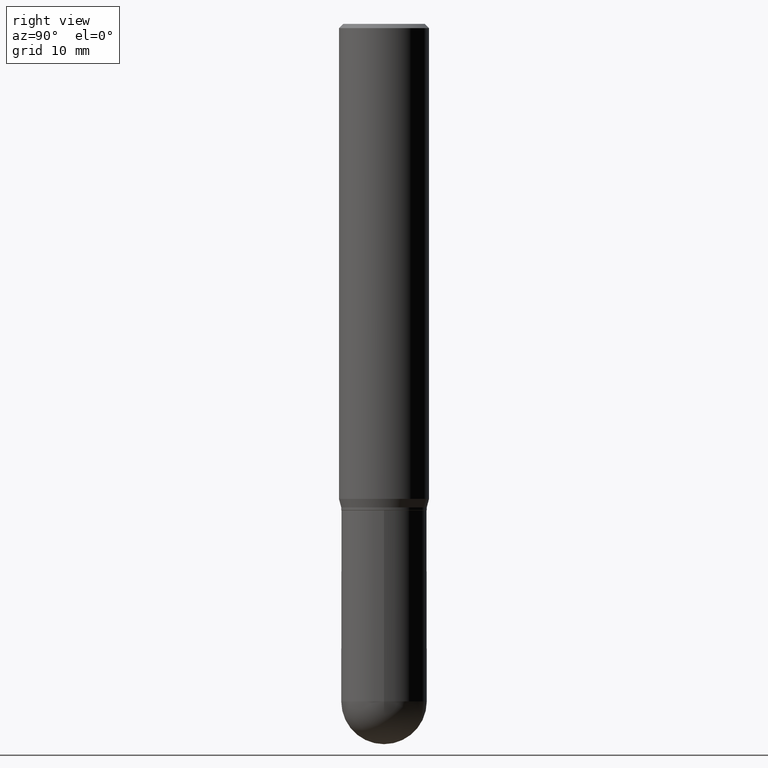
[diagram: clean part render]
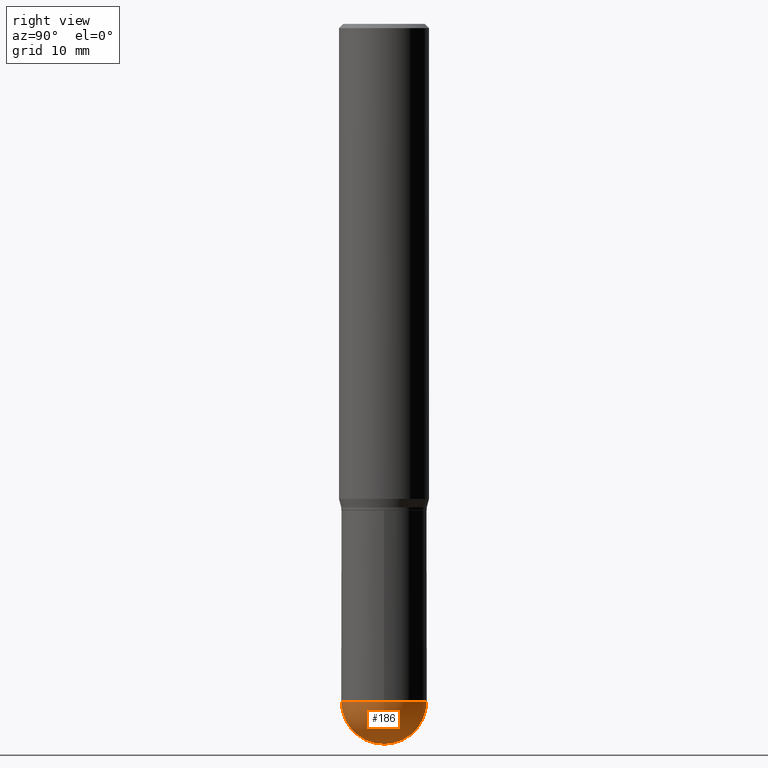
[diagram: same view with one face highlighted and labeled with its STEP entity id]
A machine part, right view. The second image highlights one B-rep face of the part: STEP entity #186.
In plain terms, the highlighted spherical surface has radius 3.7706 mm.
Its self-contained STEP definition (entity closure, byte-faithful):
#4 = ORIENTED_EDGE ( 'NONE', *, *, #328, .F. ) ;
#12 = ORIENTED_EDGE ( 'NONE', *, *, #481, .T. ) ;
#52 = EDGE_LOOP ( 'NONE', ( #4, #12, #363, #417 ) ) ;
#68 = CARTESIAN_POINT ( 'NONE',  ( 6.107324543681408519E-29, -8.737793287974535465E-15, -2.500000000000000000 ) ) ;
#84 = DIRECTION ( 'NONE',  ( 1.000000000000000000, -6.982962677686261189E-15, 0.000000000000000000 ) ) ;
#95 = DIRECTION ( 'NONE',  ( 1.000000000000000000, -6.982962677686261189E-15, 0.000000000000000000 ) ) ;
#109 = VERTEX_POINT ( 'NONE', #492 ) ;
#111 = DIRECTION ( 'NONE',  ( -7.105427357601001859E-15, -1.000000000000000000, 0.000000000000000000 ) ) ;
#137 = CARTESIAN_POINT ( 'NONE',  ( 5.750642171184658911E-29, -8.210392942356599628E-15, -2.351550000000000029 ) ) ;
#153 = DIRECTION ( 'NONE',  ( -1.000000000000000000, 7.105427357601001070E-15, -4.926315508542082329E-29 ) ) ;
#162 = AXIS2_PLACEMENT_3D ( 'NONE', #430, #470, #507 ) ;
#180 = CIRCLE ( 'NONE', #346, 0.1484499999999999986 ) ;
#186 = ADVANCED_FACE ( 'NONE', ( #487 ), #281, .T. ) ;
#194 = CIRCLE ( 'NONE', #260, 0.1484499999999999431 ) ;
#201 = AXIS2_PLACEMENT_3D ( 'NONE', #285, #359, #206 ) ;
#206 = DIRECTION ( 'NONE',  ( 6.982962677686265922E-15, 1.000000000000000000, -3.680495781292373191E-15 ) ) ;
#236 = CARTESIAN_POINT ( 'NONE',  ( 5.750642171184658911E-29, -8.210392942356599628E-15, -2.351550000000000029 ) ) ;
#237 = EDGE_CURVE ( 'NONE', #490, #343, #180, .T. ) ;
#260 = AXIS2_PLACEMENT_3D ( 'NONE', #418, #153, #111 ) ;
#281 = SPHERICAL_SURFACE ( 'NONE', #201, 0.1484499999999999431 ) ;
#285 = CARTESIAN_POINT ( 'NONE',  ( 5.737947227621790723E-29, -8.228572824089942252E-15, -2.351550000000000029 ) ) ;
#289 = AXIS2_PLACEMENT_3D ( 'NONE', #236, #425, #84 ) ;
#328 = EDGE_CURVE ( 'NONE', #369, #109, #194, .T. ) ;
#343 = VERTEX_POINT ( 'NONE', #496 ) ;
#346 = AXIS2_PLACEMENT_3D ( 'NONE', #137, #448, #95 ) ;
#359 = DIRECTION ( 'NONE',  ( -1.000000000000000000, 6.982962677686265922E-15, -4.883557194083112901E-29 ) ) ;
#363 = ORIENTED_EDGE ( 'NONE', *, *, #237, .F. ) ;
#369 = VERTEX_POINT ( 'NONE', #68 ) ;
#417 = ORIENTED_EDGE ( 'NONE', *, *, #509, .F. ) ;
#418 = CARTESIAN_POINT ( 'NONE',  ( 5.737947227621790723E-29, -8.228572824089942252E-15, -2.351550000000000029 ) ) ;
#425 = DIRECTION ( 'NONE',  ( -2.445468806185136597E-29, 3.491481338843145583E-15, 1.000000000000000000 ) ) ;
#429 = CIRCLE ( 'NONE', #162, 0.1484499999999999431 ) ;
#430 = CARTESIAN_POINT ( 'NONE',  ( 5.737947227621790723E-29, -8.228572824089942252E-15, -2.351550000000000029 ) ) ;
#448 = DIRECTION ( 'NONE',  ( -2.445468806185136597E-29, 3.491481338843145583E-15, 1.000000000000000000 ) ) ;
#451 = CIRCLE ( 'NONE', #289, 0.1484499999999999986 ) ;
#470 = DIRECTION ( 'NONE',  ( 1.000000000000000000, -6.982962677686265922E-15, 4.883557194083112340E-29 ) ) ;
#481 = EDGE_CURVE ( 'NONE', #369, #343, #429, .T. ) ;
#487 = FACE_OUTER_BOUND ( 'NONE', #52, .T. ) ;
#490 = VERTEX_POINT ( 'NONE', #505 ) ;
#492 = CARTESIAN_POINT ( 'NONE',  ( -1.054800691235810932E-15, -0.1484500000000082143, -2.351549999999999585 ) ) ;
#496 = CARTESIAN_POINT ( 'NONE',  ( 1.036620809502583482E-15, 0.1484499999999917552, -2.351550000000000917 ) ) ;
#505 = CARTESIAN_POINT ( 'NONE',  ( 0.1484500000000000264, -8.088627530664441274E-15, -2.351550000000000029 ) ) ;
#507 = DIRECTION ( 'NONE',  ( 6.982962677686266711E-15, 1.000000000000000000, 0.000000000000000000 ) ) ;
#509 = EDGE_CURVE ( 'NONE', #109, #490, #451, .T. ) ;